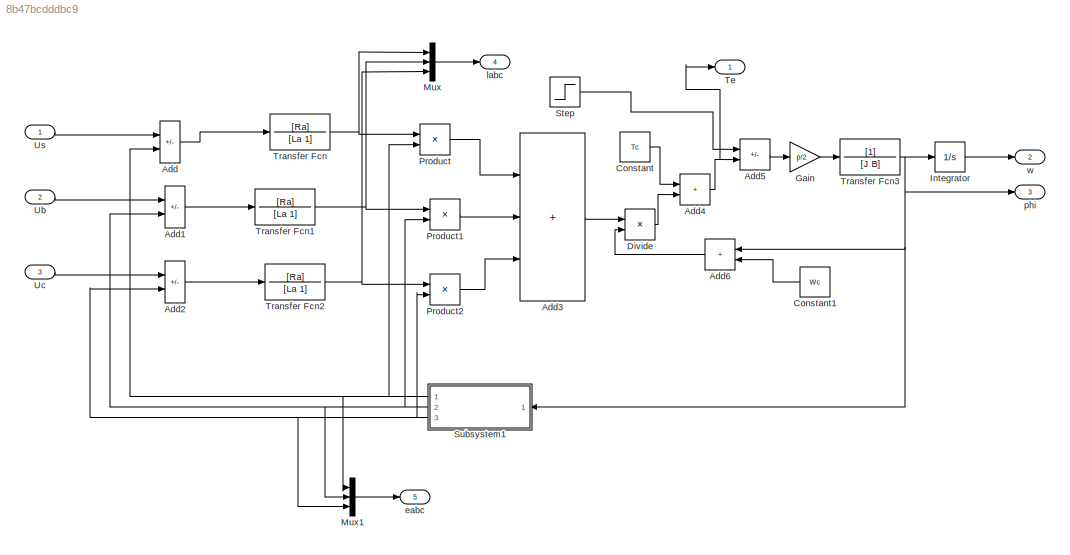
MODEL slx_8b47bcdddbc9
KIND model
CONFIG AbsTol = auto
CONFIG EnableMultiTasking = off
CONFIG FixedStep = 1
CONFIG MaxStep = auto
CONFIG MinStep = auto
CONFIG RelTol = 1e-3
CONFIG SampleTimeConstraint = Unconstrained
CONFIG Solver = VariableStepAuto
CONFIG SolverName = VariableStepAuto
CONFIG StartTime = 0.0
CONFIG StopTime = 10.0
BLOCK [Sum] Add
  IconShape = rectangular
  Inputs = +-
  Ports = [2, 1]
BLOCK [Sum] Add1
  IconShape = rectangular
  Inputs = +-
  Ports = [2, 1]
BLOCK [Sum] Add2
  IconShape = rectangular
  Inputs = +-
  Ports = [2, 1]
BLOCK [Sum] Add3
  IconShape = rectangular
  Inputs = +++
  Ports = [3, 1]
BLOCK [Sum] Add4
  IconShape = rectangular
  Ports = [2, 1]
BLOCK [Sum] Add5
  IconShape = rectangular
  Inputs = -+
  Ports = [2, 1]
BLOCK [Sum] Add6
  IconShape = rectangular
  Ports = [2, 1]
BLOCK [Constant] Constant
  Value = Tc
BLOCK [Constant] Constant1
  Value = Wc
BLOCK [Product] Divide
  Inputs = */
  Ports = [2, 1]
BLOCK [Gain] Gain
  Gain = p/2
BLOCK [Integrator] Integrator
  Ports = [1, 1]
BLOCK [Mux] Mux
  DisplayOption = bar
  Inputs = 3
  Ports = [3, 1]
BLOCK [Mux] Mux1
  DisplayOption = bar
  Inputs = 3
  Ports = [3, 1]
BLOCK [Product] Product
  Ports = [2, 1]
BLOCK [Product] Product1
  Ports = [2, 1]
BLOCK [Product] Product2
  Ports = [2, 1]
BLOCK [Step] Step
  SampleTime = 0
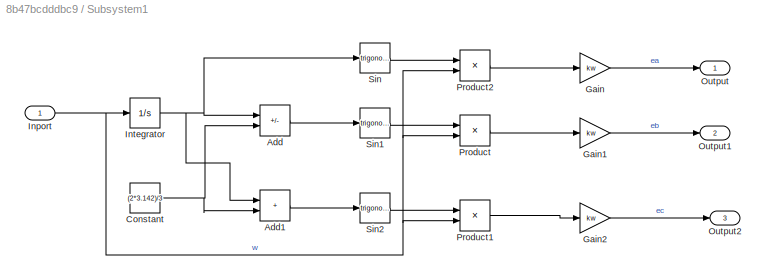
BLOCK [SubSystem] Subsystem1
  Ports = [1, 3]
  RequestExecContextInheritance = off
BLOCK [Sum] Subsystem1/Add
  IconShape = rectangular
  Inputs = +-
  Ports = [2, 1]
BLOCK [Sum] Subsystem1/Add1
  IconShape = rectangular
  Ports = [2, 1]
BLOCK [Constant] Subsystem1/Constant
  SampleTime = -1
  Value = (2*3.142)/3
BLOCK [Gain] Subsystem1/Gain
  Gain = kw
BLOCK [Gain] Subsystem1/Gain1
  Gain = kw
BLOCK [Gain] Subsystem1/Gain2
  Gain = kw
BLOCK [Inport] Subsystem1/Inport
BLOCK [Integrator] Subsystem1/Integrator
  Ports = [1, 1]
BLOCK [Outport] Subsystem1/Output
BLOCK [Outport] Subsystem1/Output1
  Port = 2
BLOCK [Outport] Subsystem1/Output2
  Port = 3
BLOCK [Product] Subsystem1/Product
  Ports = [2, 1]
BLOCK [Product] Subsystem1/Product1
  Ports = [2, 1]
BLOCK [Product] Subsystem1/Product2
  Ports = [2, 1]
BLOCK [Trigonometry] Subsystem1/Sin
  Ports = [1, 1]
BLOCK [Trigonometry] Subsystem1/Sin1
  Ports = [1, 1]
BLOCK [Trigonometry] Subsystem1/Sin2
  Ports = [1, 1]
BLOCK [Outport] Te
BLOCK [TransferFcn] Transfer Fcn
  Denominator = [La 1]
  Numerator = [Ra]
BLOCK [TransferFcn] Transfer Fcn1
  Denominator = [La 1]
  Numerator = [Ra]
BLOCK [TransferFcn] Transfer Fcn2
  Denominator = [La 1]
  Numerator = [Ra]
BLOCK [TransferFcn] Transfer Fcn3
  Denominator = [J B]
BLOCK [Inport] Ub
  Port = 2
BLOCK [Inport] Uc
  Port = 3
BLOCK [Inport] Us
BLOCK [Outport] eabc
  Port = 5
BLOCK [Outport] labc
  Port = 4
BLOCK [Outport] phi
  Port = 3
BLOCK [Outport] w
  Port = 2
LINE Add1:1 -> Transfer Fcn1:1
LINE Add2:1 -> Transfer Fcn2:1
LINE Add3:1 -> Divide:1
NET Add4:1 -> Add5:2, Te:1
LINE Add5:1 -> Gain:1
LINE Add6:1 -> Divide:2
LINE Add:1 -> Transfer Fcn:1
LINE Constant1:1 -> Add6:2
LINE Constant:1 -> Add4:1
LINE Divide:1 -> Add4:2
LINE Gain:1 -> Transfer Fcn3:1
LINE Integrator:1 -> w:1
LINE Mux1:1 -> eabc:1
LINE Mux:1 -> labc:1
LINE Product1:1 -> Add3:2
LINE Product2:1 -> Add3:3
LINE Product:1 -> Add3:1
LINE Step:1 -> Add5:1
LINE Subsystem1/Add1:1 -> Subsystem1/Sin2:1
LINE Subsystem1/Add:1 -> Subsystem1/Sin1:1
NET Subsystem1/Constant:1 -> Subsystem1/Add1:2, Subsystem1/Add:2
LINE Subsystem1/Gain1:1 -> Subsystem1/Output1:1
LINE Subsystem1/Gain2:1 -> Subsystem1/Output2:1
LINE Subsystem1/Gain:1 -> Subsystem1/Output:1
NET Subsystem1/Inport:1 -> Subsystem1/Integrator:1, Subsystem1/Product1:2, Subsystem1/Product2:2, Subsystem1/Product:2
NET Subsystem1/Integrator:1 -> Subsystem1/Add1:1, Subsystem1/Add:1, Subsystem1/Sin:1
LINE Subsystem1/Product1:1 -> Subsystem1/Gain2:1
LINE Subsystem1/Product2:1 -> Subsystem1/Gain:1
LINE Subsystem1/Product:1 -> Subsystem1/Gain1:1
LINE Subsystem1/Sin1:1 -> Subsystem1/Product:1
LINE Subsystem1/Sin2:1 -> Subsystem1/Product1:1
LINE Subsystem1/Sin:1 -> Subsystem1/Product2:1
NET Subsystem1:1 -> Add:2, Mux1:1, Product:2
NET Subsystem1:2 -> Add1:2, Mux1:2, Product1:2
NET Subsystem1:3 -> Add2:2, Mux1:3, Product2:2
NET Transfer Fcn1:1 -> Mux:2, Product1:1
NET Transfer Fcn2:1 -> Mux:3, Product2:1
NET Transfer Fcn3:1 -> Add6:1, Integrator:1, Subsystem1:1, phi:1
NET Transfer Fcn:1 -> Mux:1, Product:1
LINE Ub:1 -> Add1:1
LINE Uc:1 -> Add2:1
LINE Us:1 -> Add:1
note: NET lines group one-source signal fan-out (src -> all destinations, sorted); 1:1 wires keep LINE
